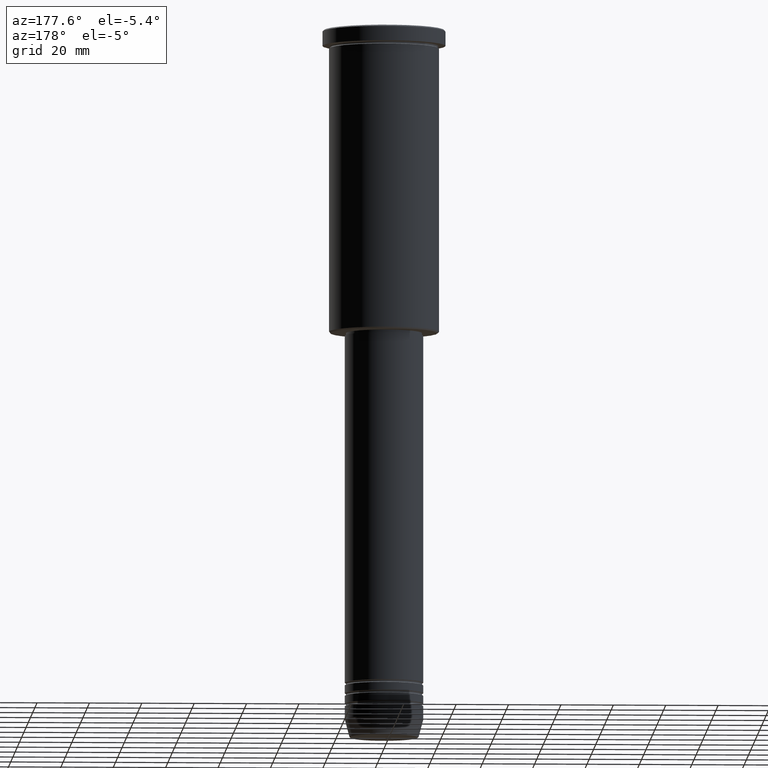
[diagram: clean part render]
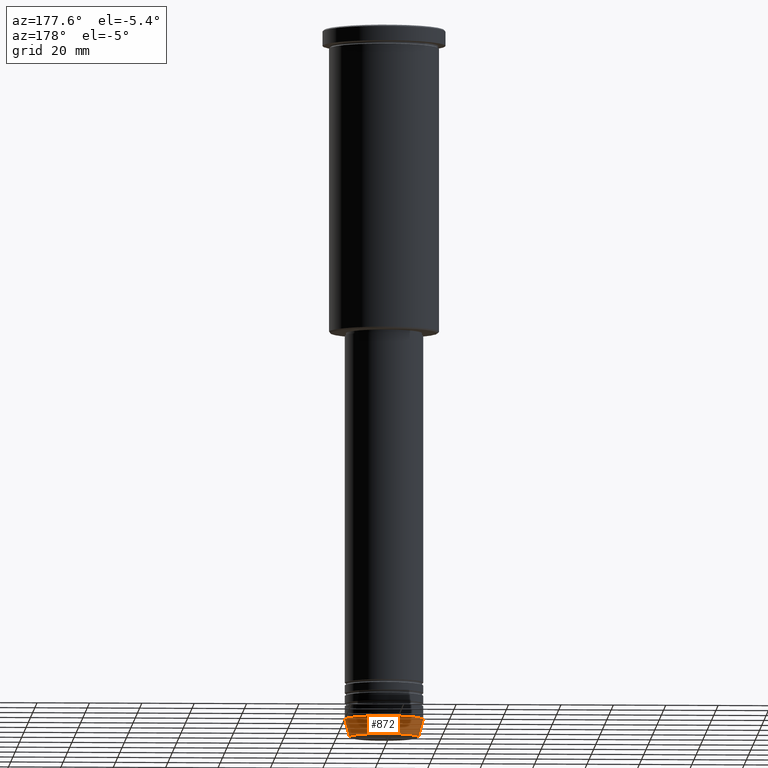
[diagram: same view with one face highlighted and labeled with its STEP entity id]
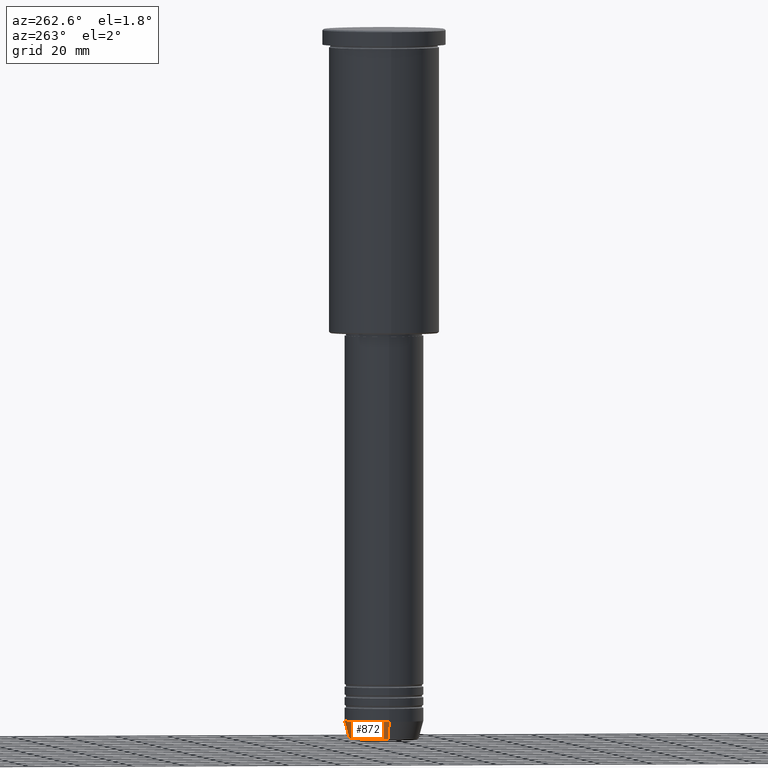
[diagram: same view with one face highlighted and labeled with its STEP entity id]
A machine part, auxiliary view. The second image highlights one B-rep face of the part: STEP entity #872.
A second angle (auxiliary view) of the same face is appended — the face is thin or edge-on in the first view.
In plain terms, the highlighted conical surface has half-angle 15 deg.
Its self-contained STEP definition (entity closure, byte-faithful):
#65 = VERTEX_POINT ( 'NONE', #889 ) ;
#164 = DIRECTION ( 'NONE',  ( 1.000000000000000000, 0.000000000000000000, 0.000000000000000000 ) ) ;
#193 = ORIENTED_EDGE ( 'NONE', *, *, #1068, .F. ) ;
#199 = VERTEX_POINT ( 'NONE', #1097 ) ;
#239 = CARTESIAN_POINT ( 'NONE',  ( 0.000000000000000000, 0.000000000000000000, -264.0000000000000000 ) ) ;
#268 = DIRECTION ( 'NONE',  ( -0.000000000000000000, -0.000000000000000000, 1.000000000000000000 ) ) ;
#305 = CONICAL_SURFACE ( 'NONE', #454, 15.00000000000000000, 0.2617993877991500740 ) ;
#346 = EDGE_CURVE ( 'NONE', #199, #65, #788, .T. ) ;
#405 = DIRECTION ( 'NONE',  ( 1.000000000000000000, 0.000000000000000000, 0.000000000000000000 ) ) ;
#421 = AXIS2_PLACEMENT_3D ( 'NONE', #239, #502, #405 ) ;
#423 = VERTEX_POINT ( 'NONE', #799 ) ;
#433 = CARTESIAN_POINT ( 'NONE',  ( 15.00000000000000000, 0.000000000000000000, -264.0000000000000000 ) ) ;
#454 = AXIS2_PLACEMENT_3D ( 'NONE', #623, #980, #164 ) ;
#455 = VERTEX_POINT ( 'NONE', #1173 ) ;
#461 = EDGE_CURVE ( 'NONE', #455, #199, #931, .T. ) ;
#476 = ORIENTED_EDGE ( 'NONE', *, *, #346, .T. ) ;
#502 = DIRECTION ( 'NONE',  ( -0.000000000000000000, -0.000000000000000000, 1.000000000000000000 ) ) ;
#558 = CARTESIAN_POINT ( 'NONE',  ( 0.000000000000000000, 0.000000000000000000, -270.6294095225513274 ) ) ;
#611 = CARTESIAN_POINT ( 'NONE',  ( -15.00000000000000000, 1.836970198721029589E-15, -264.0000000000000000 ) ) ;
#623 = CARTESIAN_POINT ( 'NONE',  ( 0.000000000000000000, 0.000000000000000000, -264.0000000000000000 ) ) ;
#635 = DIRECTION ( 'NONE',  ( 0.2588190451025213501, 0.000000000000000000, 0.9659258262890680902 ) ) ;
#640 = DIRECTION ( 'NONE',  ( 1.000000000000000000, 0.000000000000000000, 0.000000000000000000 ) ) ;
#656 = ORIENTED_EDGE ( 'NONE', *, *, #766, .F. ) ;
#679 = ORIENTED_EDGE ( 'NONE', *, *, #461, .T. ) ;
#705 = VECTOR ( 'NONE', #970, 1000.000000000000000 ) ;
#712 = LINE ( 'NONE', #433, #1084 ) ;
#766 = EDGE_CURVE ( 'NONE', #455, #423, #712, .T. ) ;
#788 = LINE ( 'NONE', #611, #705 ) ;
#799 = CARTESIAN_POINT ( 'NONE',  ( 15.00000000000000000, 0.000000000000000000, -264.0000000000000000 ) ) ;
#872 = ADVANCED_FACE ( 'NONE', ( #909 ), #305, .T. ) ;
#889 = CARTESIAN_POINT ( 'NONE',  ( -15.00000000000000000, 1.836970198721029589E-15, -264.0000000000000000 ) ) ;
#909 = FACE_OUTER_BOUND ( 'NONE', #1046, .T. ) ;
#931 = CIRCLE ( 'NONE', #1143, 13.22365507213718772 ) ;
#970 = DIRECTION ( 'NONE',  ( -0.2588190451025213501, 3.169619151431772337E-17, 0.9659258262890680902 ) ) ;
#980 = DIRECTION ( 'NONE',  ( -0.000000000000000000, -0.000000000000000000, 1.000000000000000000 ) ) ;
#1046 = EDGE_LOOP ( 'NONE', ( #679, #476, #193, #656 ) ) ;
#1068 = EDGE_CURVE ( 'NONE', #423, #65, #1146, .T. ) ;
#1084 = VECTOR ( 'NONE', #635, 1000.000000000000000 ) ;
#1097 = CARTESIAN_POINT ( 'NONE',  ( -13.22365507213718772, 1.728200442216588386E-15, -270.6294095225513274 ) ) ;
#1143 = AXIS2_PLACEMENT_3D ( 'NONE', #558, #268, #640 ) ;
#1146 = CIRCLE ( 'NONE', #421, 15.00000000000000000 ) ;
#1173 = CARTESIAN_POINT ( 'NONE',  ( 13.22365507213718772, 0.000000000000000000, -270.6294095225513274 ) ) ;